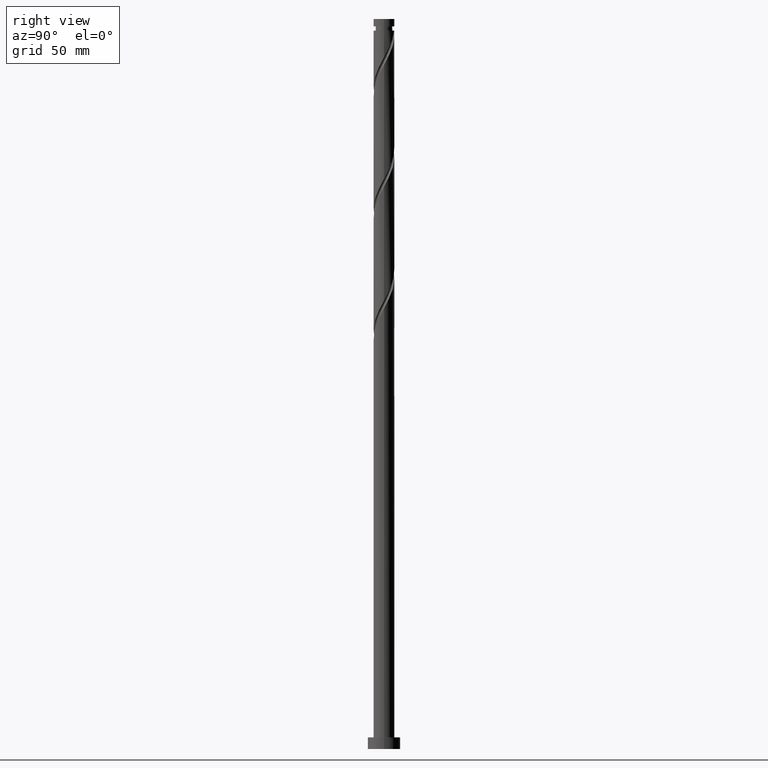
[diagram: clean part render]
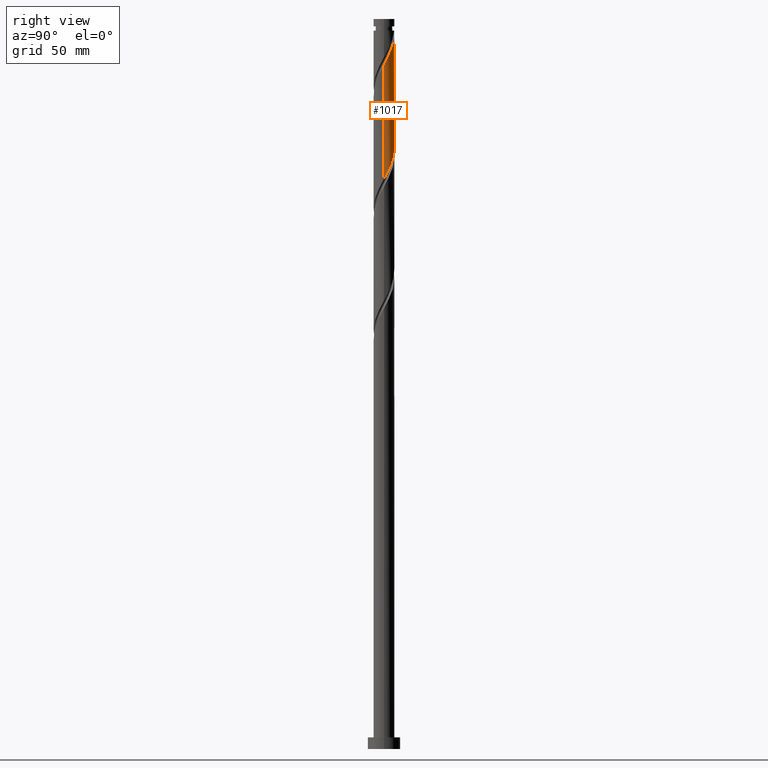
[diagram: same view with one face highlighted and labeled with its STEP entity id]
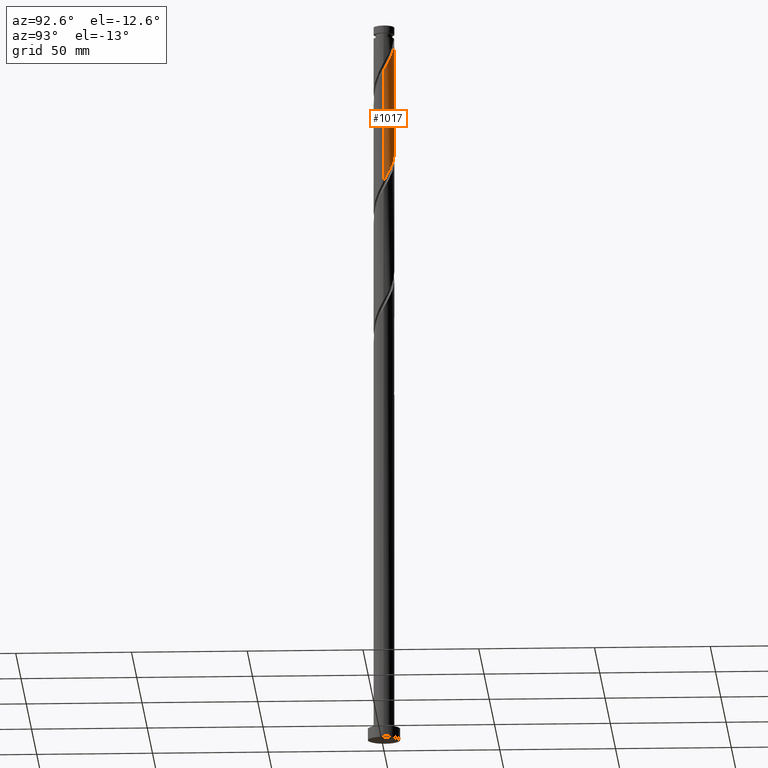
[diagram: same view with one face highlighted and labeled with its STEP entity id]
A machine part, right view. The second image highlights one B-rep face of the part: STEP entity #1017.
A second angle (auxiliary view) of the same face is appended — the face is thin or edge-on in the first view.
In plain terms, the highlighted cylindrical surface (edge-blend (fillet) strip) has radius 4.5 mm, axis along (-0, -0, -1).
Its self-contained STEP definition (entity closure, byte-faithful):
#3 = ORIENTED_EDGE ( 'NONE', *, *, #228, .T. ) ;
#30 = CARTESIAN_POINT ( 'NONE',  ( 0.000000000000000000, 0.000000000000000000, 315.0000000000000000 ) ) ;
#38 = ORIENTED_EDGE ( 'NONE', *, *, #415, .F. ) ;
#78 = CARTESIAN_POINT ( 'NONE',  ( -3.278237881270724685, 3.124137324024465645, 265.9365483705881275 ) ) ;
#90 = CARTESIAN_POINT ( 'NONE',  ( 4.498697073123632428, 0.1082803965123914913, 246.2490483705881275 ) ) ;
#122 = DIRECTION ( 'NONE',  ( -0.000000000000000000, -0.000000000000000000, -1.000000000000000000 ) ) ;
#145 = CARTESIAN_POINT ( 'NONE',  ( 0.6151618214612590840, 4.486496802515036464, 307.1865483705880706 ) ) ;
#194 = VERTEX_POINT ( 'NONE', #719 ) ;
#202 = CARTESIAN_POINT ( 'NONE',  ( -3.584734724821531771, 2.720234723816808309, 266.8740483705881843 ) ) ;
#219 = CARTESIAN_POINT ( 'NONE',  ( -2.500859658072928760, 3.775285233751813241, 264.0615483705881275 ) ) ;
#228 = EDGE_CURVE ( 'NONE', #271, #1139, #1789, .T. ) ;
#230 = CARTESIAN_POINT ( 'NONE',  ( -4.309102656267769227, 1.392376358355452259, 269.6865483705881275 ) ) ;
#248 = VERTEX_POINT ( 'NONE', #993 ) ;
#271 = VERTEX_POINT ( 'NONE', #1390 ) ;
#324 = DIRECTION ( 'NONE',  ( -0.000000000000000000, -0.000000000000000000, -1.000000000000000000 ) ) ;
#359 = CARTESIAN_POINT ( 'NONE',  ( -0.6151618214612567526, 4.486496802515031135, 260.3115483705881843 ) ) ;
#366 = AXIS2_PLACEMENT_3D ( 'NONE', #30, #324, #591 ) ;
#376 = CARTESIAN_POINT ( 'NONE',  ( -0.1082803965123921158, 4.498697073123632428, 259.3740483705881275 ) ) ;
#383 = CARTESIAN_POINT ( 'NONE',  ( 2.316332123609150528, 3.891231568372338412, 254.6865483705881275 ) ) ;
#415 = EDGE_CURVE ( 'NONE', #271, #1453, #1018, .T. ) ;
#417 = CARTESIAN_POINT ( 'NONE',  ( 2.720234723816809197, 3.584734724821531771, 253.7490483705881843 ) ) ;
#434 = CARTESIAN_POINT ( 'NONE',  ( -0.3986010284364646106, 4.510897343732238163, 309.0615483705880706 ) ) ;
#437 = FACE_OUTER_BOUND ( 'NONE', #909, .T. ) ;
#444 =( BOUNDED_CURVE ( )  B_SPLINE_CURVE ( 2, ( #626, #1689, #1699, #230, #1811, #1680, #202, #78, #1098, #219, #791, #1380, #1237, #359, #376, #1392, #1244, #809, #1400, #383, #417, #1275, #990, #866, #1857, #820, #1440, #1870, #90, #979, #1011 ),
 .UNSPECIFIED., .F., .T. ) 
 B_SPLINE_CURVE_WITH_KNOTS ( ( 3, 2, 2, 2, 2, 2, 2, 2, 2, 2, 2, 2, 2, 2, 2, 3 ),
 ( 0.4295303401299221946, 0.4375000000000000000, 0.4464285714285714524, 0.4553571428571428492, 0.4642857142857143016, 0.4732142857142856984, 0.4821428571428571508, 0.4910714285714285476, 0.5000000000000000000, 0.5089285714285713969, 0.5178571428571429047, 0.5267857142857143016, 0.5357142857142856984, 0.5446428571428570953, 0.5535714285714286031, 0.5545303401299219725 ),
 .UNSPECIFIED. ) 
 CURVE ( )  GEOMETRIC_REPRESENTATION_ITEM ( )  RATIONAL_B_SPLINE_CURVE ( ( 0.9079949616362009701, 0.9039886423360643519, 0.9090909090909310430, 0.9033747362666060265, 0.9090909090909310430, 0.9033747362666060265, 0.9090909090909310430, 0.9033747362666060265, 0.9090909090909310430, 0.9033747362666060265, 0.9090909090909310430, 0.9033747362666060265, 0.9090909090909310430, 0.9033747362666060265, 0.9090909090909310430, 0.9033747362666060265, 0.9090909090909310430, 0.9033747362666060265, 0.9090909090909310430, 0.9033747362666060265, 0.9090909090909310430, 0.9033747362666060265, 0.9090909090909310430, 0.9033747362666060265, 0.9090909090909310430, 0.9033747362666060265, 0.9090909090909310430, 0.9033747362666060265, 0.9090909090909310430, 0.9084770030214728287, 0.9079949616362011922 ) ) 
 REPRESENTATION_ITEM ( '' )  );
#446 = CARTESIAN_POINT ( 'NONE',  ( 4.500000000000000888, 5.510910596163089556E-16, 315.0000000000000000 ) ) ;
#471 = CARTESIAN_POINT ( 'NONE',  ( 4.100167112320058926, 1.854354240982301949, 298.7490483705880138 ) ) ;
#554 = CARTESIAN_POINT ( 'NONE',  ( 0.000000000000000000, 0.000000000000000000, 309.9990483705881275 ) ) ;
#571 = CARTESIAN_POINT ( 'NONE',  ( -4.500000000000000888, 0.000000000000000000, 315.0000000000000000 ) ) ;
#591 = DIRECTION ( 'NONE',  ( -1.000000000000000000, 0.000000000000000000, 0.000000000000000000 ) ) ;
#605 = CARTESIAN_POINT ( 'NONE',  ( 3.891231568372342853, 2.316332123609150972, 299.6865483705880706 ) ) ;
#613 = CARTESIAN_POINT ( 'NONE',  ( 4.500000000000007105, 1.276153636090482243E-15, 295.1995312926820247 ) ) ;
#626 = CARTESIAN_POINT ( 'NONE',  ( -4.500000000000003553, 2.932914496979897836E-15, 272.2985654484942302 ) ) ;
#636 = CARTESIAN_POINT ( 'NONE',  ( -0.8954886933960174433, 4.410000000000000142, 309.9990483705882411 ) ) ;
#708 = DIRECTION ( 'NONE',  ( -1.000000000000000000, 0.000000000000000000, 0.000000000000000000 ) ) ;
#719 = CARTESIAN_POINT ( 'NONE',  ( 4.500000000000001776, -4.029958850812072272E-15, 246.0485654484941733 ) ) ;
#724 = CARTESIAN_POINT ( 'NONE',  ( 3.584734724821536656, 2.720234723816809641, 300.6240483705881275 ) ) ;
#743 = CARTESIAN_POINT ( 'NONE',  ( 3.278237881270730014, 3.124137324024467866, 301.5615483705880138 ) ) ;
#791 = CARTESIAN_POINT ( 'NONE',  ( -2.049468773505891406, 4.006204905696196583, 263.1240483705881843 ) ) ;
#809 = CARTESIAN_POINT ( 'NONE',  ( 1.392376358355452703, 4.309102656267769227, 256.5615483705880706 ) ) ;
#820 = CARTESIAN_POINT ( 'NONE',  ( 4.237124577640579481, 1.598077888938852720, 249.0615483705881843 ) ) ;
#837 =( BOUNDED_CURVE ( )  B_SPLINE_CURVE ( 2, ( #613, #1198, #1181, #908, #471, #605, #724, #743, #1457, #1926, #1758, #1028, #1162, #145, #1331, #434, #1610 ),
 .UNSPECIFIED., .F., .T. ) 
 B_SPLINE_CURVE_WITH_KNOTS ( ( 3, 2, 2, 2, 2, 2, 2, 2, 3 ),
 ( 0.6795303401299213064, 0.6875000000000000000, 0.6964285714285713969, 0.7053571428571427937, 0.7142857142857141906, 0.7232142857142855874, 0.7321428571428570953, 0.7410714285714284921, 0.7499999999999998890 ),
 .UNSPECIFIED. ) 
 CURVE ( )  GEOMETRIC_REPRESENTATION_ITEM ( )  RATIONAL_B_SPLINE_CURVE ( ( 0.9079949616362072984, 0.9039886423360692369, 0.9090909090909363721, 0.9033747362666113556, 0.9090909090909363721, 0.9033747362666113556, 0.9090909090909363721, 0.9033747362666113556, 0.9090909090909363721, 0.9033747362666113556, 0.9090909090909363721, 0.9033747362666113556, 0.9090909090909363721, 0.9033747362666113556, 0.9090909090909363721, 0.9033747362666114666, 0.9090909090909362611 ) ) 
 REPRESENTATION_ITEM ( '' )  );
#866 = CARTESIAN_POINT ( 'NONE',  ( 3.775285233751813685, 2.500859658072927871, 250.9365483705880990 ) ) ;
#908 = CARTESIAN_POINT ( 'NONE',  ( 4.309102656267771891, 1.392376358355451815, 297.8115483705880138 ) ) ;
#909 = EDGE_LOOP ( 'NONE', ( #1491, #1450, #934, #38, #3 ) ) ;
#934 = ORIENTED_EDGE ( 'NONE', *, *, #1319, .F. ) ;
#979 = CARTESIAN_POINT ( 'NONE',  ( 4.500000000000002665, 0.05414803724875934948, 246.1489281367192916 ) ) ;
#990 = CARTESIAN_POINT ( 'NONE',  ( 3.449711278888139887, 2.889548769671827166, 251.8740483705881275 ) ) ;
#993 = CARTESIAN_POINT ( 'NONE',  ( 4.500000000000007105, 1.276153636090482243E-15, 295.1995312926820247 ) ) ;
#1011 = CARTESIAN_POINT ( 'NONE',  ( 4.500000000000001776, -4.029958850812072272E-15, 246.0485654484941733 ) ) ;
#1017 = ADVANCED_FACE ( 'NONE', ( #437 ), #1650, .T. ) ;
#1018 = LINE ( 'NONE', #571, #1320 ) ;
#1027 = EDGE_CURVE ( 'NONE', #248, #194, #1171, .T. ) ;
#1028 = CARTESIAN_POINT ( 'NONE',  ( 1.598077888938856939, 4.237124577640583034, 305.3115483705880138 ) ) ;
#1098 = CARTESIAN_POINT ( 'NONE',  ( -2.889548769671827610, 3.449711278888139887, 264.9990483705881275 ) ) ;
#1139 = VERTEX_POINT ( 'NONE', #636 ) ;
#1162 = CARTESIAN_POINT ( 'NONE',  ( 1.106619855200057900, 4.361810690077809305, 306.2490483705880138 ) ) ;
#1171 = LINE ( 'NONE', #446, #1659 ) ;
#1181 = CARTESIAN_POINT ( 'NONE',  ( 4.410000000000005471, 0.8954886933959614881, 296.8740483705881275 ) ) ;
#1198 = CARTESIAN_POINT ( 'NONE',  ( 4.500000000000014211, 0.4522670168666048651, 296.0378023716456255 ) ) ;
#1237 = CARTESIAN_POINT ( 'NONE',  ( -1.106619855200054792, 4.361810690077805752, 261.2490483705881275 ) ) ;
#1244 = CARTESIAN_POINT ( 'NONE',  ( 0.8954886933959630424, 4.410000000000001030, 257.4990483705881275 ) ) ;
#1265 = CARTESIAN_POINT ( 'NONE',  ( -4.500000000000001776, 2.932914496979897442E-15, 272.2985654484942302 ) ) ;
#1275 = CARTESIAN_POINT ( 'NONE',  ( 3.124137324024467421, 3.278237881270724241, 252.8115483705881275 ) ) ;
#1319 = EDGE_CURVE ( 'NONE', #1453, #194, #444, .T. ) ;
#1320 = VECTOR ( 'NONE', #1867, 1000.000000000000000 ) ;
#1331 = CARTESIAN_POINT ( 'NONE',  ( 0.1082803965123940032, 4.498697073123635981, 308.1240483705880706 ) ) ;
#1380 = CARTESIAN_POINT ( 'NONE',  ( -1.598077888938853608, 4.237124577640579481, 262.1865483705881843 ) ) ;
#1390 = CARTESIAN_POINT ( 'NONE',  ( -4.499999999999975131, 0.000000000000000000, 309.9990483705881275 ) ) ;
#1392 = CARTESIAN_POINT ( 'NONE',  ( 0.3986010284364721601, 4.510897343732234610, 258.4365483705881843 ) ) ;
#1400 = CARTESIAN_POINT ( 'NONE',  ( 1.854354240982301949, 4.100167112320052709, 255.6240483705880990 ) ) ;
#1440 = CARTESIAN_POINT ( 'NONE',  ( 4.361810690077806640, 1.106619855200054348, 248.1240483705880990 ) ) ;
#1450 = ORIENTED_EDGE ( 'NONE', *, *, #1027, .T. ) ;
#1453 = VERTEX_POINT ( 'NONE', #1265 ) ;
#1457 = CARTESIAN_POINT ( 'NONE',  ( 2.889548769671831607, 3.449711278888142552, 302.4990483705880706 ) ) ;
#1491 = ORIENTED_EDGE ( 'NONE', *, *, #1556, .F. ) ;
#1556 = EDGE_CURVE ( 'NONE', #248, #1139, #837, .T. ) ;
#1600 = AXIS2_PLACEMENT_3D ( 'NONE', #554, #122, #708 ) ;
#1610 = CARTESIAN_POINT ( 'NONE',  ( -0.8954886933960175543, 4.410000000000000142, 309.9990483705882411 ) ) ;
#1650 = CYLINDRICAL_SURFACE ( 'NONE', #366, 4.500000000000000888 ) ;
#1659 = VECTOR ( 'NONE', #1771, 1000.000000000000000 ) ;
#1680 = CARTESIAN_POINT ( 'NONE',  ( -3.891231568372338412, 2.316332123609150528, 267.8115483705881275 ) ) ;
#1689 = CARTESIAN_POINT ( 'NONE',  ( -4.500000000000001776, 0.4522670168666584889, 271.4602943695306863 ) ) ;
#1699 = CARTESIAN_POINT ( 'NONE',  ( -4.410000000000001030, 0.8954886933959621542, 270.6240483705881843 ) ) ;
#1758 = CARTESIAN_POINT ( 'NONE',  ( 2.049468773505894958, 4.006204905696200136, 304.3740483705880706 ) ) ;
#1771 = DIRECTION ( 'NONE',  ( -0.000000000000000000, -0.000000000000000000, -1.000000000000000000 ) ) ;
#1789 = CIRCLE ( 'NONE', #1600, 4.499999999999975131 ) ;
#1811 = CARTESIAN_POINT ( 'NONE',  ( -4.100167112320053597, 1.854354240982300839, 268.7490483705881843 ) ) ;
#1857 = CARTESIAN_POINT ( 'NONE',  ( 4.006204905696196583, 2.049468773505890518, 249.9990483705881275 ) ) ;
#1867 = DIRECTION ( 'NONE',  ( -0.000000000000000000, -0.000000000000000000, -1.000000000000000000 ) ) ;
#1870 = CARTESIAN_POINT ( 'NONE',  ( 4.486496802515029358, 0.6151618214612559754, 247.1865483705881275 ) ) ;
#1926 = CARTESIAN_POINT ( 'NONE',  ( 2.500859658072932312, 3.775285233751815461, 303.4365483705879001 ) ) ;